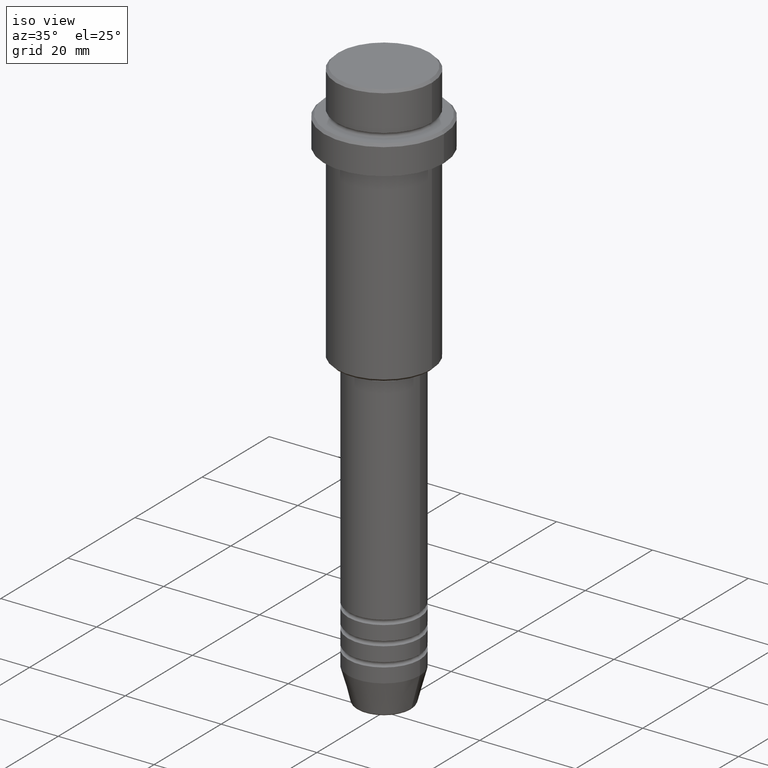
[diagram: clean part render]
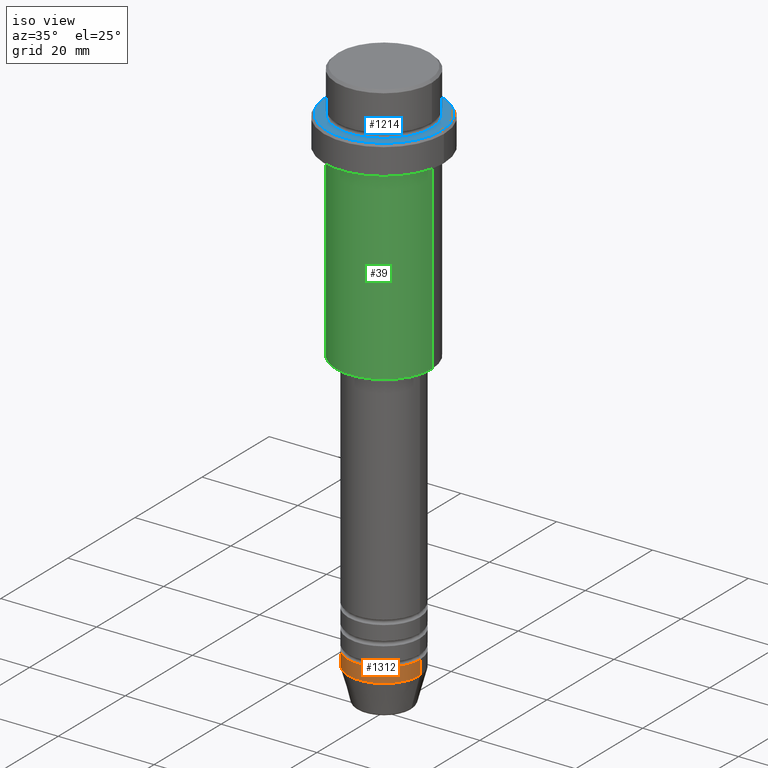
[diagram: same view with three faces highlighted in distinct colors, each labeled with its STEP entity id]
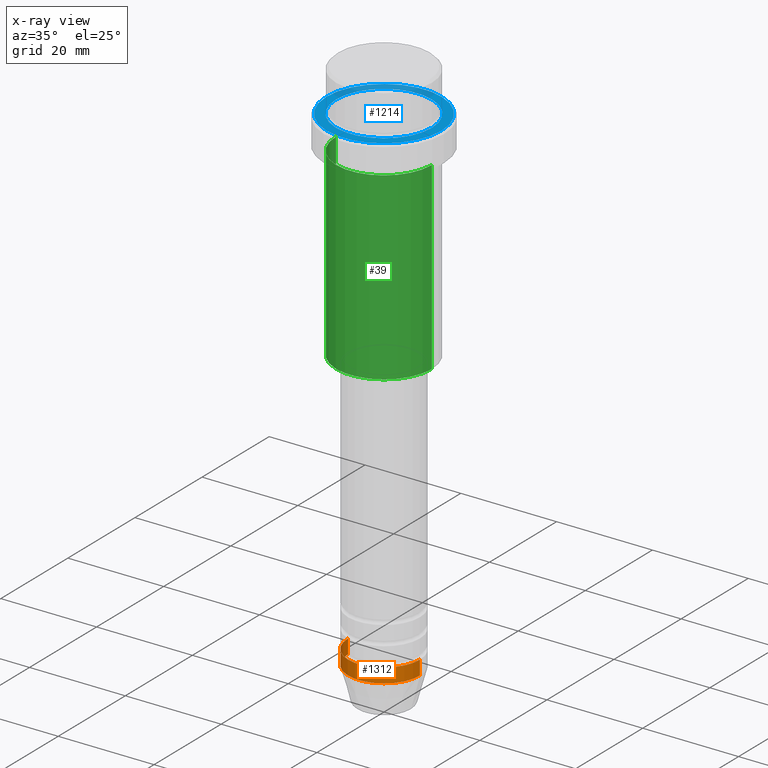
[diagram: x-ray of the same camera — body ghosted, the three highlighted faces saturated]
A machine part, iso view with three faces highlighted in distinct colors.
The next image is the same camera in x-ray (body ghosted, the three faces saturated) — at least one of them is partly hidden behind the body in this view.
Their STEP definitions:

[orange] entity #1312 — the highlighted cylindrical surface (partial cylindrical patch) has radius 7.5 mm, axis along (-0, -0, 1).
#10 = CARTESIAN_POINT ( 'NONE',  ( 0.000000000000000000, 0.000000000000000000, -113.0000000000000000 ) ) ;
#78 = DIRECTION ( 'NONE',  ( 1.000000000000000000, 0.000000000000000000, 0.000000000000000000 ) ) ;
#122 = EDGE_LOOP ( 'NONE', ( #861, #499, #1168, #241 ) ) ;
#152 = CARTESIAN_POINT ( 'NONE',  ( 7.500000000000000000, 0.000000000000000000, -113.0000000000000000 ) ) ;
#241 = ORIENTED_EDGE ( 'NONE', *, *, #344, .F. ) ;
#258 = LINE ( 'NONE', #815, #1384 ) ;
#344 = EDGE_CURVE ( 'NONE', #771, #347, #701, .T. ) ;
#347 = VERTEX_POINT ( 'NONE', #1367 ) ;
#359 = DIRECTION ( 'NONE',  ( -0.000000000000000000, -0.000000000000000000, 1.000000000000000000 ) ) ;
#411 = AXIS2_PLACEMENT_3D ( 'NONE', #10, #453, #674 ) ;
#453 = DIRECTION ( 'NONE',  ( -0.000000000000000000, -0.000000000000000000, 1.000000000000000000 ) ) ;
#461 = CIRCLE ( 'NONE', #411, 7.500000000000000000 ) ;
#479 = CARTESIAN_POINT ( 'NONE',  ( -7.500000000000000000, 9.184850993605147944E-16, -113.0000000000000000 ) ) ;
#499 = ORIENTED_EDGE ( 'NONE', *, *, #618, .T. ) ;
#504 = DIRECTION ( 'NONE',  ( -0.000000000000000000, -0.000000000000000000, 1.000000000000000000 ) ) ;
#509 = DIRECTION ( 'NONE',  ( -0.000000000000000000, -0.000000000000000000, 1.000000000000000000 ) ) ;
#561 = EDGE_CURVE ( 'NONE', #757, #347, #1121, .T. ) ;
#569 = AXIS2_PLACEMENT_3D ( 'NONE', #617, #1041, #78 ) ;
#617 = CARTESIAN_POINT ( 'NONE',  ( 0.000000000000000000, 0.000000000000000000, 0.000000000000000000 ) ) ;
#618 = EDGE_CURVE ( 'NONE', #749, #757, #461, .T. ) ;
#674 = DIRECTION ( 'NONE',  ( 1.000000000000000000, 0.000000000000000000, 0.000000000000000000 ) ) ;
#701 = CIRCLE ( 'NONE', #928, 7.500000000000000000 ) ;
#708 = CARTESIAN_POINT ( 'NONE',  ( 0.000000000000000000, 0.000000000000000000, -110.0000000000000000 ) ) ;
#749 = VERTEX_POINT ( 'NONE', #479 ) ;
#757 = VERTEX_POINT ( 'NONE', #152 ) ;
#771 = VERTEX_POINT ( 'NONE', #1163 ) ;
#815 = CARTESIAN_POINT ( 'NONE',  ( -7.500000000000000000, 9.184850993605147944E-16, 0.000000000000000000 ) ) ;
#835 = FACE_OUTER_BOUND ( 'NONE', #122, .T. ) ;
#861 = ORIENTED_EDGE ( 'NONE', *, *, #1171, .F. ) ;
#928 = AXIS2_PLACEMENT_3D ( 'NONE', #708, #509, #1396 ) ;
#1041 = DIRECTION ( 'NONE',  ( -0.000000000000000000, -0.000000000000000000, 1.000000000000000000 ) ) ;
#1121 = LINE ( 'NONE', #1209, #1387 ) ;
#1163 = CARTESIAN_POINT ( 'NONE',  ( -7.500000000000000000, 9.184850993605147944E-16, -110.0000000000000000 ) ) ;
#1168 = ORIENTED_EDGE ( 'NONE', *, *, #561, .T. ) ;
#1171 = EDGE_CURVE ( 'NONE', #749, #771, #258, .T. ) ;
#1209 = CARTESIAN_POINT ( 'NONE',  ( 7.500000000000000000, 0.000000000000000000, 0.000000000000000000 ) ) ;
#1286 = CYLINDRICAL_SURFACE ( 'NONE', #569, 7.500000000000000000 ) ;
#1312 = ADVANCED_FACE ( 'NONE', ( #835 ), #1286, .T. ) ;
#1367 = CARTESIAN_POINT ( 'NONE',  ( 7.500000000000000000, 0.000000000000000000, -110.0000000000000000 ) ) ;
#1384 = VECTOR ( 'NONE', #504, 1000.000000000000000 ) ;
#1387 = VECTOR ( 'NONE', #359, 1000.000000000000000 ) ;
#1396 = DIRECTION ( 'NONE',  ( 1.000000000000000000, 0.000000000000000000, 0.000000000000000000 ) ) ;

[blue] entity #1214 — the highlighted planar face has unit normal (0, -0, 1).
#2 = ORIENTED_EDGE ( 'NONE', *, *, #1284, .T. ) ;
#17 = AXIS2_PLACEMENT_3D ( 'NONE', #510, #394, #954 ) ;
#51 = DIRECTION ( 'NONE',  ( 0.000000000000000000, -0.000000000000000000, 1.000000000000000000 ) ) ;
#90 = ORIENTED_EDGE ( 'NONE', *, *, #1383, .T. ) ;
#94 = CARTESIAN_POINT ( 'NONE',  ( 0.000000000000000000, 0.000000000000000000, -9.000000000000000000 ) ) ;
#109 = CIRCLE ( 'NONE', #17, 9.999999999999992895 ) ;
#143 = FACE_OUTER_BOUND ( 'NONE', #819, .T. ) ;
#266 = CARTESIAN_POINT ( 'NONE',  ( -11.99999999999998224, 0.000000000000000000, -9.000000000000000000 ) ) ;
#267 = AXIS2_PLACEMENT_3D ( 'NONE', #821, #51, #702 ) ;
#281 = EDGE_CURVE ( 'NONE', #580, #767, #1300, .T. ) ;
#292 = AXIS2_PLACEMENT_3D ( 'NONE', #1377, #415, #1170 ) ;
#302 = DIRECTION ( 'NONE',  ( 1.000000000000000000, 0.000000000000000000, 0.000000000000000000 ) ) ;
#326 = DIRECTION ( 'NONE',  ( 1.000000000000000000, 0.000000000000000000, 0.000000000000000000 ) ) ;
#363 = CARTESIAN_POINT ( 'NONE',  ( 9.999999999999992895, 0.000000000000000000, -9.000000000000000000 ) ) ;
#394 = DIRECTION ( 'NONE',  ( 0.000000000000000000, 0.000000000000000000, -1.000000000000000000 ) ) ;
#415 = DIRECTION ( 'NONE',  ( 0.000000000000000000, 0.000000000000000000, -1.000000000000000000 ) ) ;
#510 = CARTESIAN_POINT ( 'NONE',  ( 0.000000000000000000, 0.000000000000000000, -9.000000000000000000 ) ) ;
#562 = ORIENTED_EDGE ( 'NONE', *, *, #1294, .T. ) ;
#580 = VERTEX_POINT ( 'NONE', #1009 ) ;
#582 = PLANE ( 'NONE',  #267 ) ;
#675 = ORIENTED_EDGE ( 'NONE', *, *, #281, .T. ) ;
#680 = AXIS2_PLACEMENT_3D ( 'NONE', #1080, #729, #302 ) ;
#702 = DIRECTION ( 'NONE',  ( 1.000000000000000000, 0.000000000000000000, 0.000000000000000000 ) ) ;
#729 = DIRECTION ( 'NONE',  ( -0.000000000000000000, -0.000000000000000000, 1.000000000000000000 ) ) ;
#739 = DIRECTION ( 'NONE',  ( -0.000000000000000000, -0.000000000000000000, 1.000000000000000000 ) ) ;
#767 = VERTEX_POINT ( 'NONE', #266 ) ;
#819 = EDGE_LOOP ( 'NONE', ( #90, #675 ) ) ;
#821 = CARTESIAN_POINT ( 'NONE',  ( 0.000000000000000000, 9.499999999999992895, -9.000000000000000000 ) ) ;
#867 = CIRCLE ( 'NONE', #1112, 11.99999999999998224 ) ;
#911 = CIRCLE ( 'NONE', #292, 9.999999999999992895 ) ;
#954 = DIRECTION ( 'NONE',  ( 1.000000000000000000, 0.000000000000000000, 0.000000000000000000 ) ) ;
#1009 = CARTESIAN_POINT ( 'NONE',  ( 11.99999999999998224, 1.500192328955506748E-15, -9.000000000000000000 ) ) ;
#1011 = CARTESIAN_POINT ( 'NONE',  ( -9.999999999999992895, 1.224646799147352468E-15, -9.000000000000000000 ) ) ;
#1026 = FACE_BOUND ( 'NONE', #1222, .T. ) ;
#1080 = CARTESIAN_POINT ( 'NONE',  ( 0.000000000000000000, 0.000000000000000000, -9.000000000000000000 ) ) ;
#1112 = AXIS2_PLACEMENT_3D ( 'NONE', #94, #739, #326 ) ;
#1139 = VERTEX_POINT ( 'NONE', #363 ) ;
#1170 = DIRECTION ( 'NONE',  ( 1.000000000000000000, 0.000000000000000000, 0.000000000000000000 ) ) ;
#1214 = ADVANCED_FACE ( 'NONE', ( #143, #1026 ), #582, .T. ) ;
#1220 = VERTEX_POINT ( 'NONE', #1011 ) ;
#1222 = EDGE_LOOP ( 'NONE', ( #2, #562 ) ) ;
#1284 = EDGE_CURVE ( 'NONE', #1139, #1220, #911, .T. ) ;
#1294 = EDGE_CURVE ( 'NONE', #1220, #1139, #109, .T. ) ;
#1300 = CIRCLE ( 'NONE', #680, 11.99999999999998224 ) ;
#1377 = CARTESIAN_POINT ( 'NONE',  ( 0.000000000000000000, 0.000000000000000000, -9.000000000000000000 ) ) ;
#1383 = EDGE_CURVE ( 'NONE', #767, #580, #867, .T. ) ;

[green] entity #39 — the highlighted cylindrical surface (partial cylindrical patch) has radius 10 mm, axis along (-0, -0, 1).
#14 = AXIS2_PLACEMENT_3D ( 'NONE', #1019, #601, #1259 ) ;
#15 = DIRECTION ( 'NONE',  ( 1.000000000000000000, 0.000000000000000000, 0.000000000000000000 ) ) ;
#39 = ADVANCED_FACE ( 'NONE', ( #48 ), #1365, .T. ) ;
#42 = LINE ( 'NONE', #1348, #1249 ) ;
#48 = FACE_OUTER_BOUND ( 'NONE', #376, .T. ) ;
#53 = CARTESIAN_POINT ( 'NONE',  ( -9.999999999999998224, 1.224646799147353059E-15, 0.000000000000000000 ) ) ;
#63 = CARTESIAN_POINT ( 'NONE',  ( 9.999999999999998224, 0.000000000000000000, -16.00000000000000000 ) ) ;
#115 = VERTEX_POINT ( 'NONE', #607 ) ;
#131 = CIRCLE ( 'NONE', #317, 9.999999999999998224 ) ;
#140 = VERTEX_POINT ( 'NONE', #63 ) ;
#167 = DIRECTION ( 'NONE',  ( -0.000000000000000000, -0.000000000000000000, 1.000000000000000000 ) ) ;
#194 = VERTEX_POINT ( 'NONE', #1055 ) ;
#273 = LINE ( 'NONE', #53, #478 ) ;
#317 = AXIS2_PLACEMENT_3D ( 'NONE', #1224, #684, #15 ) ;
#376 = EDGE_LOOP ( 'NONE', ( #884, #1349, #452, #1088 ) ) ;
#381 = AXIS2_PLACEMENT_3D ( 'NONE', #1007, #993, #782 ) ;
#402 = CARTESIAN_POINT ( 'NONE',  ( -9.999999999999998224, 1.224646799147353059E-15, -16.00000000000000000 ) ) ;
#452 = ORIENTED_EDGE ( 'NONE', *, *, #1243, .T. ) ;
#474 = DIRECTION ( 'NONE',  ( -0.000000000000000000, -0.000000000000000000, 1.000000000000000000 ) ) ;
#478 = VECTOR ( 'NONE', #474, 1000.000000000000000 ) ;
#601 = DIRECTION ( 'NONE',  ( -0.000000000000000000, -0.000000000000000000, 1.000000000000000000 ) ) ;
#607 = CARTESIAN_POINT ( 'NONE',  ( 9.999999999999998224, 0.000000000000000000, -54.49999999999999289 ) ) ;
#651 = EDGE_CURVE ( 'NONE', #194, #1291, #273, .T. ) ;
#684 = DIRECTION ( 'NONE',  ( -0.000000000000000000, -0.000000000000000000, 1.000000000000000000 ) ) ;
#782 = DIRECTION ( 'NONE',  ( -1.000000000000000000, 0.000000000000000000, 0.000000000000000000 ) ) ;
#884 = ORIENTED_EDGE ( 'NONE', *, *, #651, .F. ) ;
#993 = DIRECTION ( 'NONE',  ( -0.000000000000000000, -0.000000000000000000, 1.000000000000000000 ) ) ;
#1001 = EDGE_CURVE ( 'NONE', #194, #115, #1247, .T. ) ;
#1007 = CARTESIAN_POINT ( 'NONE',  ( 0.000000000000000000, 0.000000000000000000, -54.49999999999999289 ) ) ;
#1019 = CARTESIAN_POINT ( 'NONE',  ( 0.000000000000000000, 0.000000000000000000, 0.000000000000000000 ) ) ;
#1055 = CARTESIAN_POINT ( 'NONE',  ( -9.999999999999998224, 1.224646799147353059E-15, -54.49999999999999289 ) ) ;
#1078 = EDGE_CURVE ( 'NONE', #1291, #140, #131, .T. ) ;
#1088 = ORIENTED_EDGE ( 'NONE', *, *, #1078, .F. ) ;
#1224 = CARTESIAN_POINT ( 'NONE',  ( 0.000000000000000000, 0.000000000000000000, -16.00000000000000000 ) ) ;
#1243 = EDGE_CURVE ( 'NONE', #115, #140, #42, .T. ) ;
#1247 = CIRCLE ( 'NONE', #381, 9.999999999999998224 ) ;
#1249 = VECTOR ( 'NONE', #167, 1000.000000000000000 ) ;
#1259 = DIRECTION ( 'NONE',  ( 1.000000000000000000, 0.000000000000000000, 0.000000000000000000 ) ) ;
#1291 = VERTEX_POINT ( 'NONE', #402 ) ;
#1348 = CARTESIAN_POINT ( 'NONE',  ( 9.999999999999998224, 0.000000000000000000, 0.000000000000000000 ) ) ;
#1349 = ORIENTED_EDGE ( 'NONE', *, *, #1001, .T. ) ;
#1365 = CYLINDRICAL_SURFACE ( 'NONE', #14, 9.999999999999998224 ) ;